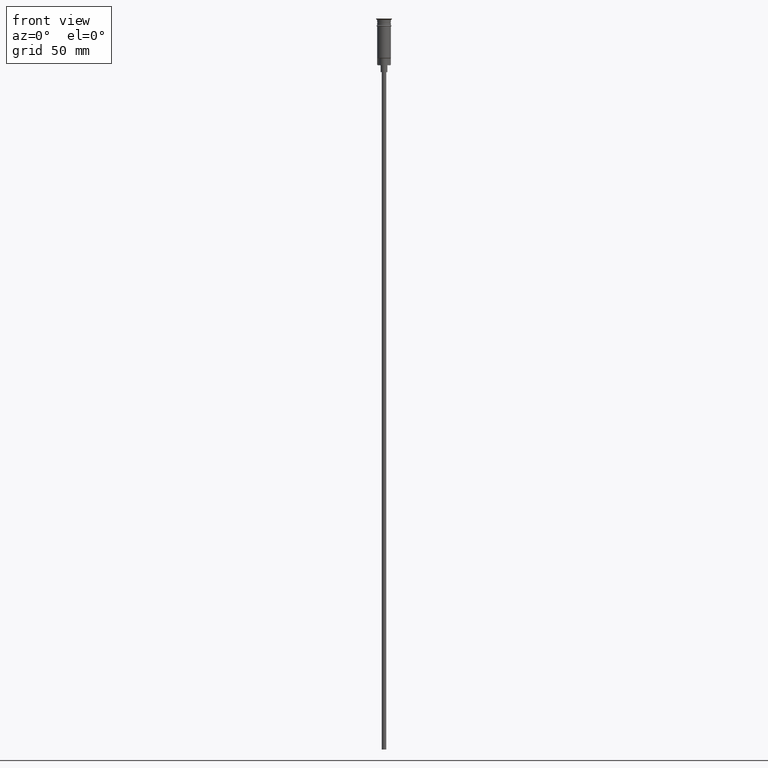
[diagram: clean part render]
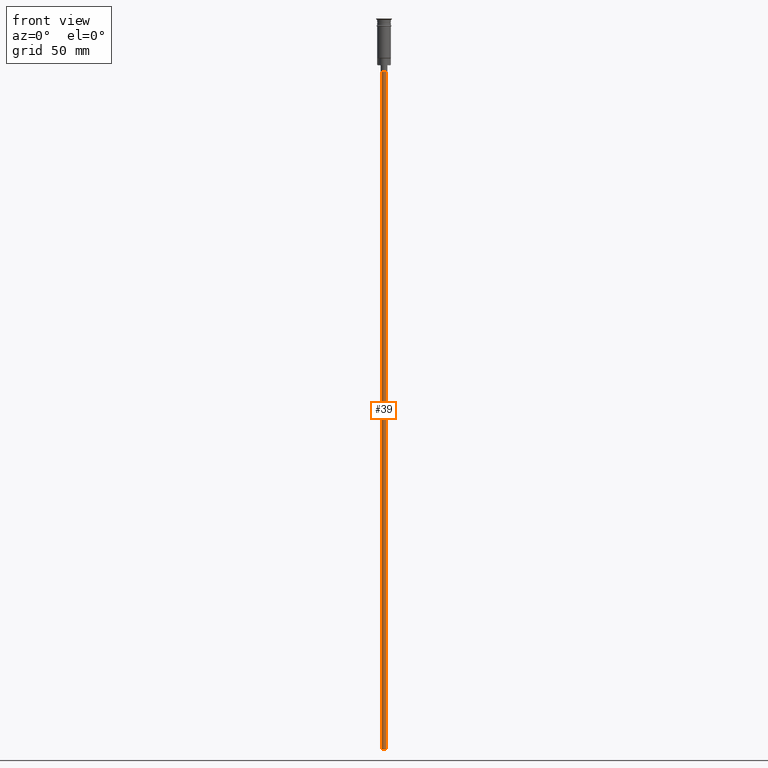
[diagram: same view with one face highlighted and labeled with its STEP entity id]
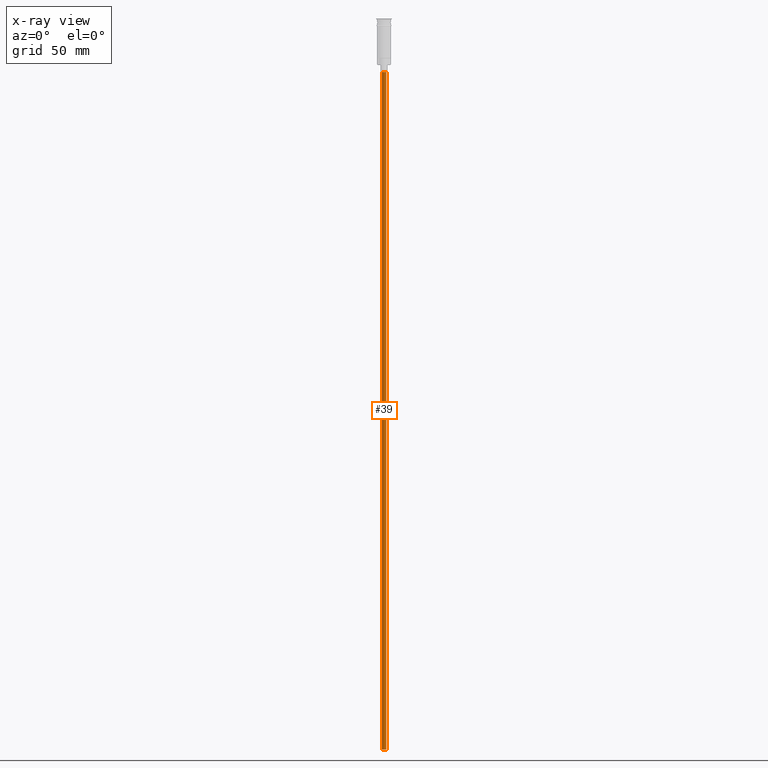
[diagram: x-ray of the same camera — body ghosted, the highlighted face saturated]
A machine part, front view. The second image highlights one B-rep face of the part: STEP entity #39.
The next image is the same camera in x-ray: the body ghosted, the highlighted face saturated — about 0% of this face is hidden behind the body in this view.
In plain terms, the highlighted cylindrical surface (edge-blend (fillet) strip) has radius 1 mm, axis along (-0, -0, 1).
Its self-contained STEP definition (entity closure, byte-faithful):
#7 = VECTOR ( 'NONE', #1057, 1000.000000000000000 ) ;
#39 = ADVANCED_FACE ( 'NONE', ( #259 ), #867, .T. ) ;
#121 = DIRECTION ( 'NONE',  ( -1.000000000000000000, 0.000000000000000000, 0.000000000000000000 ) ) ;
#126 = DIRECTION ( 'NONE',  ( 1.000000000000000000, 0.000000000000000000, 0.000000000000000000 ) ) ;
#132 = VERTEX_POINT ( 'NONE', #932 ) ;
#233 = EDGE_CURVE ( 'NONE', #132, #514, #940, .T. ) ;
#250 = CARTESIAN_POINT ( 'NONE',  ( 0.000000000000000000, 0.000000000000000000, -320.5000000000000000 ) ) ;
#259 = FACE_OUTER_BOUND ( 'NONE', #1105, .T. ) ;
#279 = CARTESIAN_POINT ( 'NONE',  ( -0.9999999999999997780, 1.224646799147352961E-16, -23.50000000000000000 ) ) ;
#375 = AXIS2_PLACEMENT_3D ( 'NONE', #1480, #995, #121 ) ;
#500 = CIRCLE ( 'NONE', #375, 0.9999999999999997780 ) ;
#514 = VERTEX_POINT ( 'NONE', #279 ) ;
#523 = AXIS2_PLACEMENT_3D ( 'NONE', #250, #1493, #126 ) ;
#528 = DIRECTION ( 'NONE',  ( -1.000000000000000000, 0.000000000000000000, 0.000000000000000000 ) ) ;
#530 = DIRECTION ( 'NONE',  ( -0.000000000000000000, -0.000000000000000000, 1.000000000000000000 ) ) ;
#569 = LINE ( 'NONE', #1553, #7 ) ;
#611 = EDGE_CURVE ( 'NONE', #653, #514, #1442, .T. ) ;
#653 = VERTEX_POINT ( 'NONE', #1427 ) ;
#654 = CARTESIAN_POINT ( 'NONE',  ( -0.9999999999999997780, 1.224646799147352961E-16, -320.5000000000000000 ) ) ;
#755 = EDGE_CURVE ( 'NONE', #1152, #653, #569, .T. ) ;
#867 = CYLINDRICAL_SURFACE ( 'NONE', #523, 0.9999999999999997780 ) ;
#929 = ORIENTED_EDGE ( 'NONE', *, *, #611, .T. ) ;
#932 = CARTESIAN_POINT ( 'NONE',  ( -0.9999999999999997780, 1.224646799147352961E-16, -320.5000000000000000 ) ) ;
#940 = LINE ( 'NONE', #654, #1156 ) ;
#971 = ORIENTED_EDGE ( 'NONE', *, *, #233, .F. ) ;
#995 = DIRECTION ( 'NONE',  ( 0.000000000000000000, 0.000000000000000000, -1.000000000000000000 ) ) ;
#1039 = DIRECTION ( 'NONE',  ( 0.000000000000000000, 0.000000000000000000, -1.000000000000000000 ) ) ;
#1057 = DIRECTION ( 'NONE',  ( -0.000000000000000000, -0.000000000000000000, 1.000000000000000000 ) ) ;
#1105 = EDGE_LOOP ( 'NONE', ( #971, #1330, #1280, #929 ) ) ;
#1152 = VERTEX_POINT ( 'NONE', #1304 ) ;
#1156 = VECTOR ( 'NONE', #530, 1000.000000000000000 ) ;
#1158 = AXIS2_PLACEMENT_3D ( 'NONE', #1392, #1039, #528 ) ;
#1273 = EDGE_CURVE ( 'NONE', #1152, #132, #500, .T. ) ;
#1280 = ORIENTED_EDGE ( 'NONE', *, *, #755, .T. ) ;
#1304 = CARTESIAN_POINT ( 'NONE',  ( 0.9999999999999997780, 0.000000000000000000, -320.5000000000000000 ) ) ;
#1330 = ORIENTED_EDGE ( 'NONE', *, *, #1273, .F. ) ;
#1392 = CARTESIAN_POINT ( 'NONE',  ( 0.000000000000000000, 0.000000000000000000, -23.50000000000000000 ) ) ;
#1427 = CARTESIAN_POINT ( 'NONE',  ( 0.9999999999999997780, 0.000000000000000000, -23.50000000000000000 ) ) ;
#1442 = CIRCLE ( 'NONE', #1158, 0.9999999999999997780 ) ;
#1480 = CARTESIAN_POINT ( 'NONE',  ( 0.000000000000000000, 0.000000000000000000, -320.5000000000000000 ) ) ;
#1493 = DIRECTION ( 'NONE',  ( -0.000000000000000000, -0.000000000000000000, 1.000000000000000000 ) ) ;
#1553 = CARTESIAN_POINT ( 'NONE',  ( 0.9999999999999997780, 0.000000000000000000, -320.5000000000000000 ) ) ;